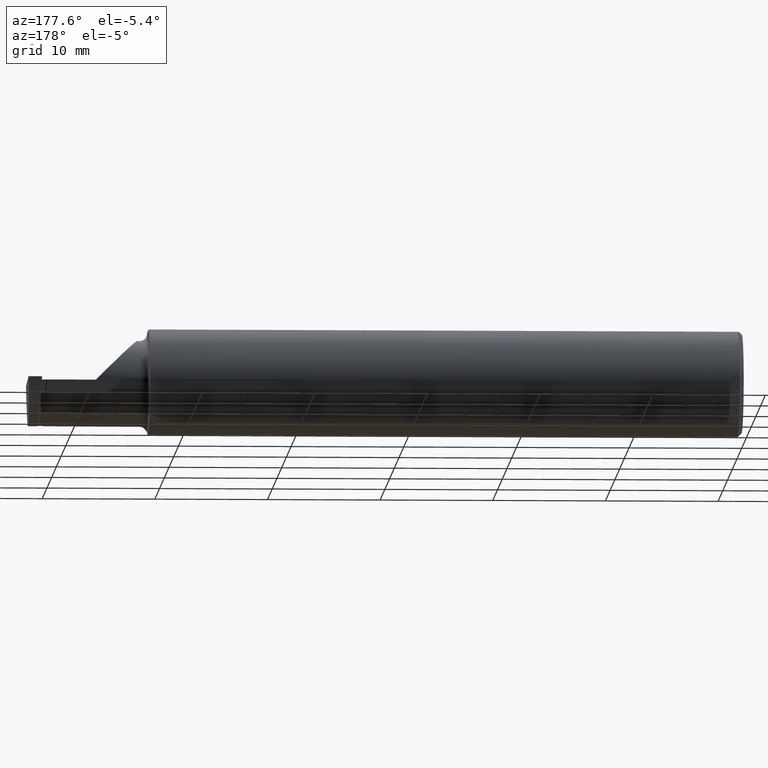
[diagram: clean part render]
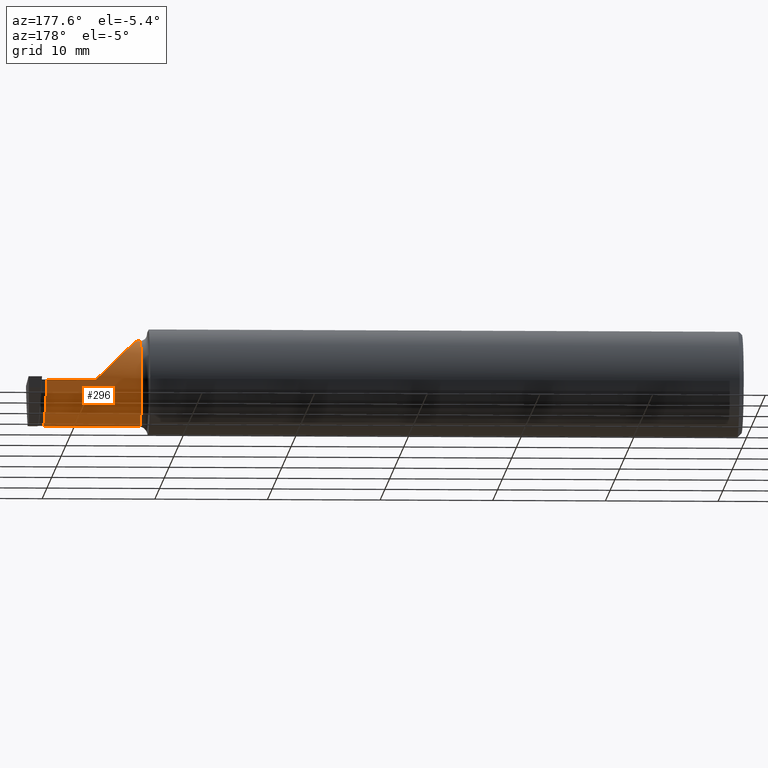
[diagram: same view with one face highlighted and labeled with its STEP entity id]
A machine part, auxiliary view. The second image highlights one B-rep face of the part: STEP entity #296.
In plain terms, the highlighted cylindrical surface (partial cylindrical patch) has radius 3.81 mm, axis along (-1, -0, -0).
Its self-contained STEP definition (entity closure, byte-faithful):
#15 = VERTEX_POINT ( 'NONE', #845 ) ;
#19 = DIRECTION ( 'NONE',  ( 1.000000000000000000, 0.000000000000000000, 0.000000000000000000 ) ) ;
#26 = EDGE_LOOP ( 'NONE', ( #178, #497, #676, #491, #656, #369 ) ) ;
#34 = CARTESIAN_POINT ( 'NONE',  ( 2.172132034355964691, 0.06665000000000004254, 0.08786796564403576149 ) ) ;
#51 = VECTOR ( 'NONE', #1026, 39.37007874015748143 ) ;
#53 = CARTESIAN_POINT ( 'NONE',  ( 2.436047627063461896, -0.008191913527189786937, -0.1301800458423418294 ) ) ;
#72 = EDGE_CURVE ( 'NONE', #15, #797, #192, .T. ) ;
#84 = DIRECTION ( 'NONE',  ( -1.000000000000000000, -0.000000000000000000, -0.000000000000000000 ) ) ;
#117 = CIRCLE ( 'NONE', #605, 0.1499999999999999944 ) ;
#119 = CARTESIAN_POINT ( 'NONE',  ( 2.075000000000000178, -0.08334999999999995191, -0.1499999999999999944 ) ) ;
#120 = CARTESIAN_POINT ( 'NONE',  ( 2.431000000000000494, 0.06664999999999987601, 9.935445533613146359E-18 ) ) ;
#128 = B_SPLINE_CURVE_WITH_KNOTS ( 'NONE', 3,
 ( #120, #682, #266, #994, #754, #206, #201, #424, #688, #53, #509, #530, #851, #131 ),
 .UNSPECIFIED., .F., .F.,
 ( 4, 2, 2, 2, 2, 2, 4 ),
 ( 4.190617419611075726E-12, 0.001502808815335890174, 0.002254213220908526417, 0.003005617626481162010, 0.003757022032053798036, 0.004508426437626434496, 0.006011235248771706549 ),
 .UNSPECIFIED. ) ;
#131 = CARTESIAN_POINT ( 'NONE',  ( 2.436802821150004572, -0.08335000000000175602, -0.1499999999999999944 ) ) ;
#136 = VECTOR ( 'NONE', #19, 39.37007874015748143 ) ;
#139 = CARTESIAN_POINT ( 'NONE',  ( 2.100000000000000089, -0.08334999999999996578, 0.000000000000000000 ) ) ;
#159 = LINE ( 'NONE', #879, #51 ) ;
#165 = CARTESIAN_POINT ( 'NONE',  ( 2.075000000000000178, 0.06665000000000004254, 5.204748896376252548E-17 ) ) ;
#178 = ORIENTED_EDGE ( 'NONE', *, *, #935, .T. ) ;
#192 = LINE ( 'NONE', #119, #481 ) ;
#201 = CARTESIAN_POINT ( 'NONE',  ( 2.434778616767482529, 0.02964324779969755574, -0.09913906211511633315 ) ) ;
#206 = CARTESIAN_POINT ( 'NONE',  ( 2.434501685452733266, 0.03584079214514342832, -0.09159665080323618758 ) ) ;
#234 = VERTEX_POINT ( 'NONE', #959 ) ;
#266 = CARTESIAN_POINT ( 'NONE',  ( 2.432485381520271162, 0.06268190983465464494, -0.03944648681647512645 ) ) ;
#271 = CARTESIAN_POINT ( 'NONE',  ( 2.110000000000001208, 0.004517965644035785294, 0.1500000000000000500 ) ) ;
#296 = ADVANCED_FACE ( 'NONE', ( #877 ), #697, .T. ) ;
#297 = DIRECTION ( 'NONE',  ( 0.000000000000000000, 0.000000000000000000, 1.000000000000000000 ) ) ;
#303 = VERTEX_POINT ( 'NONE', #486 ) ;
#369 = ORIENTED_EDGE ( 'NONE', *, *, #372, .T. ) ;
#372 = EDGE_CURVE ( 'NONE', #303, #234, #743, .T. ) ;
#424 = CARTESIAN_POINT ( 'NONE',  ( 2.435340364421280768, 0.01578456786429105127, -0.1129971908489278143 ) ) ;
#473 = CARTESIAN_POINT ( 'NONE',  ( 2.075000000000000178, -0.08334999999999996578, 0.000000000000000000 ) ) ;
#481 = VECTOR ( 'NONE', #833, 39.37007874015748143 ) ;
#486 = CARTESIAN_POINT ( 'NONE',  ( 2.260000000000000231, 0.06665000000000005642, 2.939152317953647352E-17 ) ) ;
#491 = ORIENTED_EDGE ( 'NONE', *, *, #734, .F. ) ;
#497 = ORIENTED_EDGE ( 'NONE', *, *, #72, .T. ) ;
#509 = CARTESIAN_POINT ( 'NONE',  ( 2.436195387879487750, -0.01680786726404722223, -0.1347941439950491038 ) ) ;
#530 = CARTESIAN_POINT ( 'NONE',  ( 2.436600921448331736, -0.04414771275001583284, -0.1461247665934781725 ) ) ;
#570 = AXIS2_PLACEMENT_3D ( 'NONE', #473, #736, #803 ) ;
#589 = CARTESIAN_POINT ( 'NONE',  ( 2.110000000000001208, -0.08334999999999996578, 0.1499999999999999944 ) ) ;
#605 = AXIS2_PLACEMENT_3D ( 'NONE', #139, #84, #297 ) ;
#656 = ORIENTED_EDGE ( 'NONE', *, *, #954, .T. ) ;
#667 = CARTESIAN_POINT ( 'NONE',  ( 2.110000000000001208, -0.08334999999999996578, 0.1499999999999999944 ) ) ;
#676 = ORIENTED_EDGE ( 'NONE', *, *, #741, .F. ) ;
#682 = CARTESIAN_POINT ( 'NONE',  ( 2.431759762771714684, 0.06665000002185880734, -0.01979751608576987149 ) ) ;
#688 = CARTESIAN_POINT ( 'NONE',  ( 2.435625600551126091, 0.008070056630587543051, -0.1193229045214237311 ) ) ;
#697 = CYLINDRICAL_SURFACE ( 'NONE', #570, 0.1499999999999999944 ) ;
#724 = VERTEX_POINT ( 'NONE', #802 ) ;
#734 = EDGE_CURVE ( 'NONE', #900, #724, #159, .T. ) ;
#736 = DIRECTION ( 'NONE',  ( -1.000000000000000000, -0.000000000000000000, -0.000000000000000000 ) ) ;
#741 = EDGE_CURVE ( 'NONE', #724, #797, #117, .T. ) ;
#743 = LINE ( 'NONE', #165, #136 ) ;
#754 = CARTESIAN_POINT ( 'NONE',  ( 2.433917707009768172, 0.04676326156912966742, -0.07527901788944922623 ) ) ;
#774 = CARTESIAN_POINT ( 'NONE',  ( 2.260000000000000231, 0.06665000000000005642, 2.939152317953647352E-17 ) ) ;
#797 = VERTEX_POINT ( 'NONE', #952 ) ;
#802 = CARTESIAN_POINT ( 'NONE',  ( 2.100000000000000089, -0.08334999999999996578, 0.1499999999999999944 ) ) ;
#803 = DIRECTION ( 'NONE',  ( 0.000000000000000000, 0.000000000000000000, 1.000000000000000000 ) ) ;
#833 = DIRECTION ( 'NONE',  ( -1.000000000000000000, -0.000000000000000000, -0.000000000000000000 ) ) ;
#845 = CARTESIAN_POINT ( 'NONE',  ( 2.436802821150004572, -0.08335000000000175602, -0.1499999999999999944 ) ) ;
#851 = CARTESIAN_POINT ( 'NONE',  ( 2.436823271145593939, -0.06360485849426494864, -0.1500000000000002998 ) ) ;
#877 = FACE_OUTER_BOUND ( 'NONE', #26, .T. ) ;
#879 = CARTESIAN_POINT ( 'NONE',  ( 2.075000000000000178, -0.08334999999999996578, 0.1499999999999999944 ) ) ;
#900 = VERTEX_POINT ( 'NONE', #667 ) ;
#935 = EDGE_CURVE ( 'NONE', #234, #15, #128, .T. ) ;
#952 = CARTESIAN_POINT ( 'NONE',  ( 2.100000000000000089, -0.08334999999999995191, -0.1499999999999999944 ) ) ;
#954 = EDGE_CURVE ( 'NONE', #900, #303, #1037, .T. ) ;
#959 = CARTESIAN_POINT ( 'NONE',  ( 2.431000000000000494, 0.06664999999999987601, 9.935445533613146359E-18 ) ) ;
#994 = CARTESIAN_POINT ( 'NONE',  ( 2.433584062737256914, 0.05145648337727042054, -0.06650224088317263638 ) ) ;
#1026 = DIRECTION ( 'NONE',  ( -1.000000000000000000, -0.000000000000000000, -0.000000000000000000 ) ) ;
#1037 =( BOUNDED_CURVE ( )  B_SPLINE_CURVE ( 3, ( #589, #271, #34, #774 ),
 .UNSPECIFIED., .F., .T. ) 
 B_SPLINE_CURVE_WITH_KNOTS ( ( 4, 4 ),
 ( 0.000000000000000000, 1.570796326794896558 ),
 .UNSPECIFIED. ) 
 CURVE ( )  GEOMETRIC_REPRESENTATION_ITEM ( )  RATIONAL_B_SPLINE_CURVE ( ( 1.000000000000000000, 0.8047378541243649375, 0.8047378541243649375, 1.000000000000000000 ) ) 
 REPRESENTATION_ITEM ( '' )  );